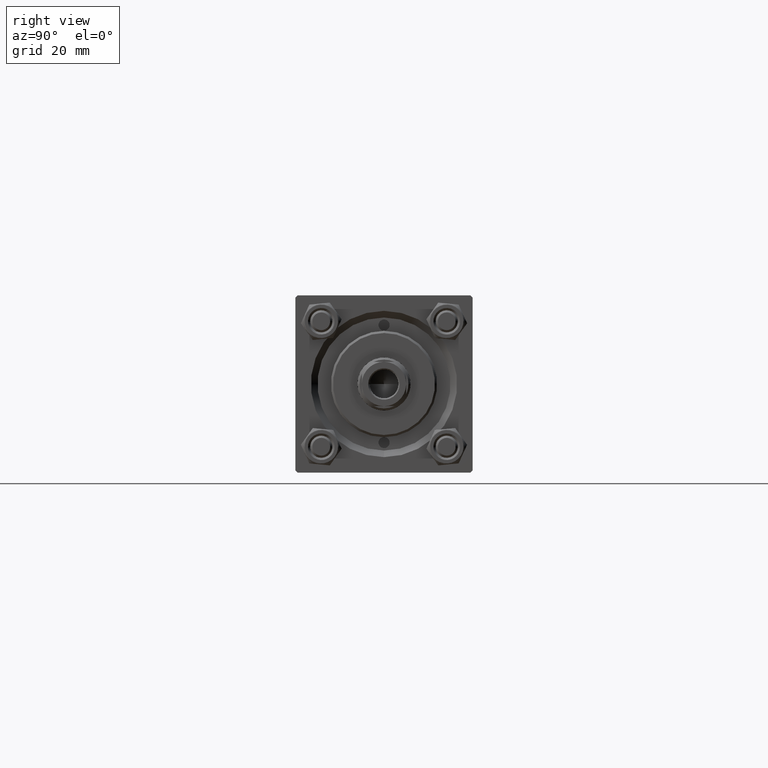
[diagram: clean part render]
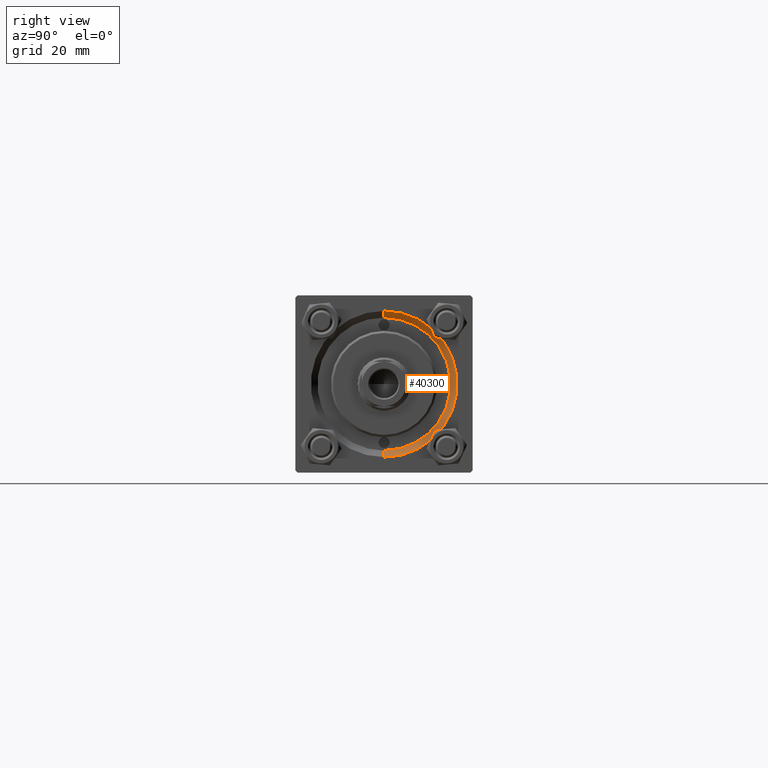
[diagram: same view with one face highlighted and labeled with its STEP entity id]
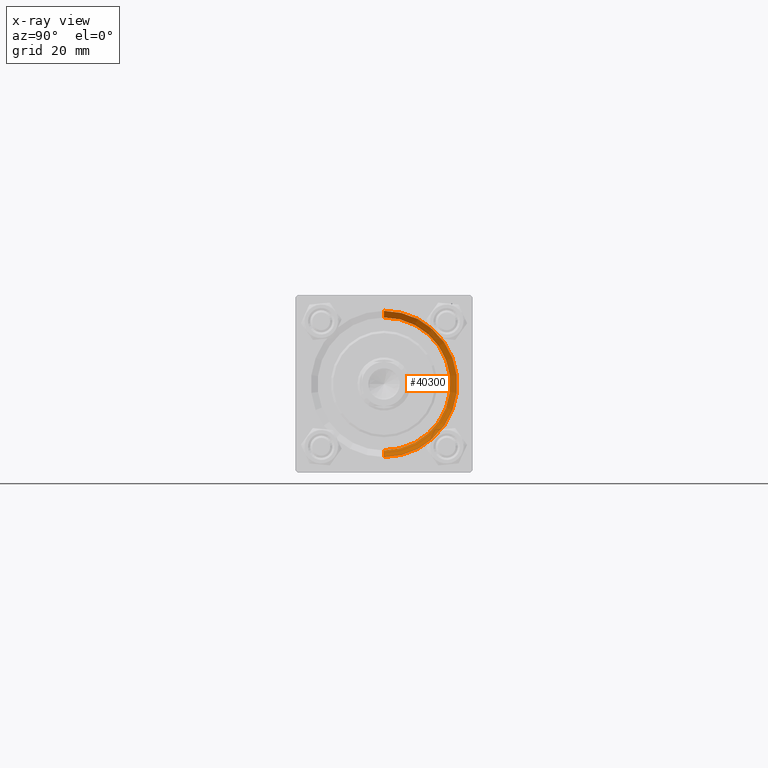
[diagram: x-ray of the same camera — body ghosted, the highlighted face saturated]
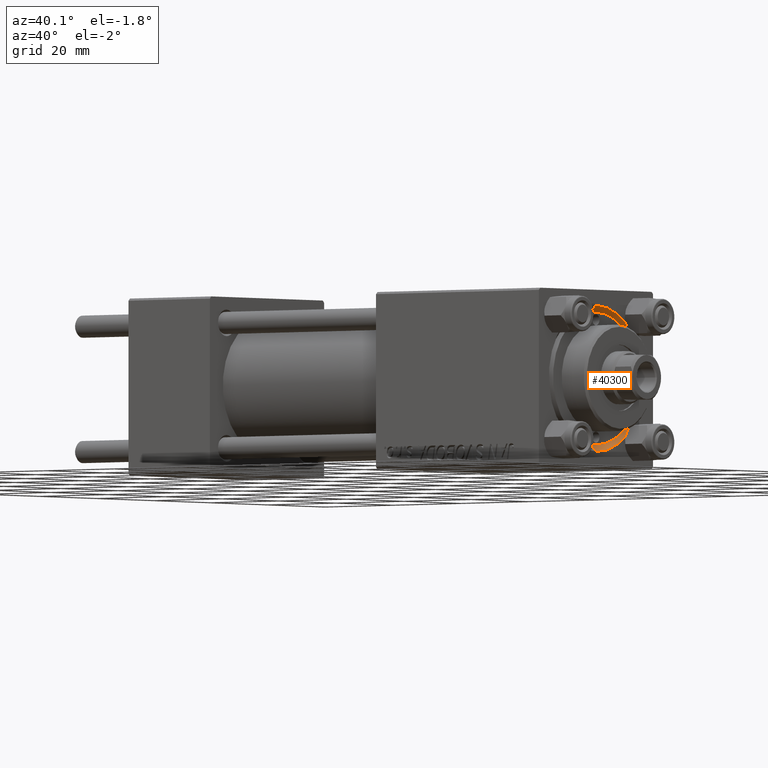
[diagram: same view with one face highlighted and labeled with its STEP entity id]
A machine part, right view. The second image highlights one B-rep face of the part: STEP entity #40300.
The next image is the same camera in x-ray: the body ghosted, the highlighted face saturated — about 0% of this face is hidden behind the body in this view.
A second angle (auxiliary view) of the same face is appended — the face is thin or edge-on in the first view.
In plain terms, the highlighted conical surface has half-angle 45 deg.
Its self-contained STEP definition (entity closure, byte-faithful):
#249 = CARTESIAN_POINT ( 'NONE',  ( 119.4999999999999858, 1.836970198721029589E-15, 15.00000000000000000 ) ) ;
#3236 = CONICAL_SURFACE ( 'NONE', #9694, 15.00000000000000000, 0.7853981633974482790 ) ;
#3486 = EDGE_CURVE ( 'NONE', #36650, #46623, #44906, .T. ) ;
#6276 = CARTESIAN_POINT ( 'NONE',  ( 119.4999999999999858, 0.000000000000000000, 0.000000000000000000 ) ) ;
#7693 = AXIS2_PLACEMENT_3D ( 'NONE', #32886, #29075, #9894 ) ;
#7816 = EDGE_LOOP ( 'NONE', ( #19233, #13808, #42070, #17261 ) ) ;
#8340 = VERTEX_POINT ( 'NONE', #38070 ) ;
#9694 = AXIS2_PLACEMENT_3D ( 'NONE', #6276, #13362, #25469 ) ;
#9894 = DIRECTION ( 'NONE',  ( 0.000000000000000000, 0.000000000000000000, 1.000000000000000000 ) ) ;
#10136 = EDGE_CURVE ( 'NONE', #33747, #8340, #18948, .T. ) ;
#10321 = CARTESIAN_POINT ( 'NONE',  ( 119.4999999999999858, 0.000000000000000000, -15.00000000000000000 ) ) ;
#13362 = DIRECTION ( 'NONE',  ( 1.000000000000000000, 0.000000000000000000, 0.000000000000000000 ) ) ;
#13808 = ORIENTED_EDGE ( 'NONE', *, *, #23864, .F. ) ;
#17261 = ORIENTED_EDGE ( 'NONE', *, *, #48371, .F. ) ;
#18078 = AXIS2_PLACEMENT_3D ( 'NONE', #34511, #45622, #49661 ) ;
#18948 = LINE ( 'NONE', #249, #22997 ) ;
#19233 = ORIENTED_EDGE ( 'NONE', *, *, #10136, .F. ) ;
#21298 = VECTOR ( 'NONE', #25710, 1000.000000000000114 ) ;
#22997 = VECTOR ( 'NONE', #34370, 1000.000000000000114 ) ;
#23056 = CARTESIAN_POINT ( 'NONE',  ( 121.0000000000000142, 0.000000000000000000, -16.50000000000002842 ) ) ;
#23864 = EDGE_CURVE ( 'NONE', #36650, #33747, #44777, .T. ) ;
#25469 = DIRECTION ( 'NONE',  ( 0.000000000000000000, 0.000000000000000000, -1.000000000000000000 ) ) ;
#25710 = DIRECTION ( 'NONE',  ( 0.7071067811865474617, 0.000000000000000000, -0.7071067811865474617 ) ) ;
#25714 = FACE_OUTER_BOUND ( 'NONE', #7816, .T. ) ;
#29075 = DIRECTION ( 'NONE',  ( 1.000000000000000000, 0.000000000000000000, 0.000000000000000000 ) ) ;
#32886 = CARTESIAN_POINT ( 'NONE',  ( 119.4999999999999858, 0.000000000000000000, 0.000000000000000000 ) ) ;
#33747 = VERTEX_POINT ( 'NONE', #45415 ) ;
#34071 = CARTESIAN_POINT ( 'NONE',  ( 119.4999999999999858, 0.000000000000000000, -15.00000000000000000 ) ) ;
#34370 = DIRECTION ( 'NONE',  ( 0.7071067811865474617, 8.659560562354932858E-17, 0.7071067811865474617 ) ) ;
#34511 = CARTESIAN_POINT ( 'NONE',  ( 121.0000000000000142, 0.000000000000000000, 0.000000000000000000 ) ) ;
#35815 = CIRCLE ( 'NONE', #18078, 16.50000000000002842 ) ;
#36650 = VERTEX_POINT ( 'NONE', #34071 ) ;
#38070 = CARTESIAN_POINT ( 'NONE',  ( 121.0000000000000142, 2.020667218593135861E-15, 16.50000000000002842 ) ) ;
#40300 = ADVANCED_FACE ( 'NONE', ( #25714 ), #3236, .F. ) ;
#42070 = ORIENTED_EDGE ( 'NONE', *, *, #3486, .T. ) ;
#44777 = CIRCLE ( 'NONE', #7693, 15.00000000000000000 ) ;
#44906 = LINE ( 'NONE', #10321, #21298 ) ;
#45415 = CARTESIAN_POINT ( 'NONE',  ( 119.4999999999999858, 1.836970198721029589E-15, 15.00000000000000000 ) ) ;
#45622 = DIRECTION ( 'NONE',  ( -1.000000000000000000, -0.000000000000000000, -0.000000000000000000 ) ) ;
#46623 = VERTEX_POINT ( 'NONE', #23056 ) ;
#48371 = EDGE_CURVE ( 'NONE', #8340, #46623, #35815, .T. ) ;
#49661 = DIRECTION ( 'NONE',  ( 0.000000000000000000, 0.000000000000000000, 1.000000000000000000 ) ) ;